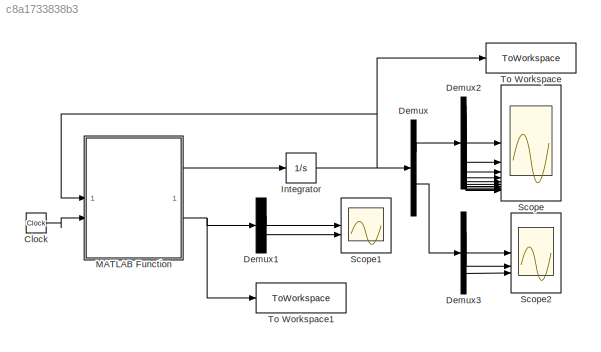
MODEL slx_c8a1733838b3
KIND model
CONFIG AbsTol = auto
CONFIG EnableMultiTasking = off
CONFIG FixedStep = auto
CONFIG MaxStep = auto
CONFIG MinStep = auto
CONFIG RelTol = 1e-4
CONFIG SampleTimeConstraint = Unconstrained
CONFIG SolverName = ode45
CONFIG StartTime = 0.0
CONFIG StopTime = 16
BLOCK [Clock] Clock
BLOCK [Demux] Demux
  Outputs = [10,9]
BLOCK [Demux] Demux1
  Outputs = 2
BLOCK [Demux] Demux2
  Outputs = 10
BLOCK [Demux] Demux3
  Outputs = [-1,-1,-1]
BLOCK [Integrator] Integrator
  InitialCondition = x0
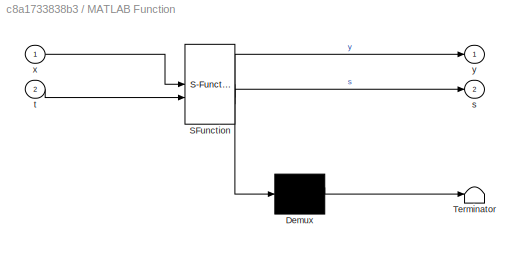
BLOCK [SubSystem] MATLAB Function
  ErrorFcn = Stateflow.Translate.translate
  PermitHierarchicalResolution = ExplicitOnly
  SFBlockType = MATLAB Function
  TreatAsAtomicUnit = on
BLOCK [Demux] MATLAB Function/ Demux 
  Outputs = 1
BLOCK [S-Function] MATLAB Function/ SFunction 
  EnableBusSupport = off
  FunctionName = sf_sfun
  PortCounts = [2 3]
  SFcnIsStateOwnerBlock = off
  SFunctionDeploymentMode = off
  Tag = Stateflow S-Function 2
BLOCK [Terminator] MATLAB Function/ Terminator 
BLOCK [Outport] MATLAB Function/s
  Port = 2
BLOCK [Inport] MATLAB Function/t
  Port = 2
BLOCK [Inport] MATLAB Function/x
BLOCK [Outport] MATLAB Function/y
BLOCK [Scope] Scope
  Floating = off
  NumInputPorts = 10
  ScopeSpecificationString = Simulink.scopes.TimeScopeBlockCfg('CurrentConfiguration', extmgr.ConfigurationSet(extmgr.Configuration('Core','General UI',true),extmgr.Configuration('Core','Source UI',true),extmgr.Configuration('Sources','WiredSimulink',true),extmgr.Configuration('Visuals','Time Domain',true,'SerializedDisplays',{struct('MinYLimReal','-0.51324','MaxYLimReal','0.51304','YLabelReal','','MinYLimMag','0.00000','MaxY...<+9071ch>
BLOCK [Scope] Scope1
  Floating = off
  NumInputPorts = 2
  ScopeSpecificationString = Simulink.scopes.TimeScopeBlockCfg('CurrentConfiguration', extmgr.ConfigurationSet(extmgr.Configuration('Core','General UI',true),extmgr.Configuration('Core','Source UI',true),extmgr.Configuration('Sources','WiredSimulink',true,'DataLoggingVariableName','ScopeData1'),extmgr.Configuration('Visuals','Time Domain',true,'SerializedDisplays',{struct('MinYLimReal','-0.16046','MaxYLimReal','0.09852','YLab...<+2244ch>
BLOCK [Scope] Scope2
  Floating = off
  NumInputPorts = 3
  ScopeSpecificationString = Simulink.scopes.TimeScopeBlockCfg('CurrentConfiguration', extmgr.ConfigurationSet(extmgr.Configuration('Core','General UI',true),extmgr.Configuration('Core','Source UI',true),extmgr.Configuration('Sources','WiredSimulink',true,'DataLoggingVariableName','ScopeData1'),extmgr.Configuration('Visuals','Time Domain',true,'SerializedDisplays',{struct('MinYLimReal','-0.50352','MaxYLimReal','0.64541','YLab...<+3061ch>
BLOCK [ToWorkspace] To Workspace
  FixptAsFi = on
  MaxDataPoints = inf
  SampleTime = -1
  SaveFormat = Structure With Time
  VariableName = State1
BLOCK [ToWorkspace] To Workspace1
  FixptAsFi = on
  MaxDataPoints = inf
  SampleTime = -1
  SaveFormat = Structure With Time
  VariableName = Surface1
LINE Clock:1 -> MATLAB Function:2
LINE Demux1:1 -> Scope1:1
LINE Demux1:2 -> Scope1:2
LINE Demux2:1 -> Scope:1
LINE Demux2:10 -> Scope:10
LINE Demux2:2 -> Scope:2
LINE Demux2:3 -> Scope:3
LINE Demux2:4 -> Scope:4
LINE Demux2:5 -> Scope:5
LINE Demux2:6 -> Scope:6
LINE Demux2:7 -> Scope:7
LINE Demux2:8 -> Scope:8
LINE Demux2:9 -> Scope:9
LINE Demux3:1 -> Scope2:1
LINE Demux3:2 -> Scope2:2
LINE Demux3:3 -> Scope2:3
LINE Demux:1 -> Demux2:1
LINE Demux:2 -> Demux3:1
NET Integrator:1 -> Demux:1, MATLAB Function:1, To Workspace:1
LINE MATLAB Function:1 -> Integrator:1
NET MATLAB Function:2 -> Demux1:1, To Workspace1:1
note: NET lines group one-source signal fan-out (src -> all destinations, sorted); 1:1 wires keep LINE
CHART MATLAB Function states=1 transitions=1
  STATE_LABEL 'eML_blk_kernel()'
  STATE_LABEL 'SCRIPT:\nfunction [y, s] = fcn(x, t)\ny=zeros(19,1);\ns=zeros(9,1);\n%% \n%  1-4 theta1 theta2 dtheta1 dtheta2\n%  \n%  5-10 x y z dx dy dz\n%% \nl=0.5; g=9.81; mp=0.5;mq=1.121;\nm=mp+mq;\n\n\n% %% M ,C  G   u \n% M=zeros(5,5);\n% M(1,1)=mq+mp;M(2,2)=mq+mp;M(3,3)=mq+mp;M(4,4)=mp*l^2*cos(x(2))^2;M(5,5)=mp*l^2;\n% M(1,4)=mp*l*cos(x(1))*cos(x(2));\n% M(4,1)=M(1,4);\n% M(1,5)=-mp*l*sin(x(1))*sin(x(2));\n% M(5,1)=M(1,5);...<+3354ch>'
CHART  states=0 transitions=0
